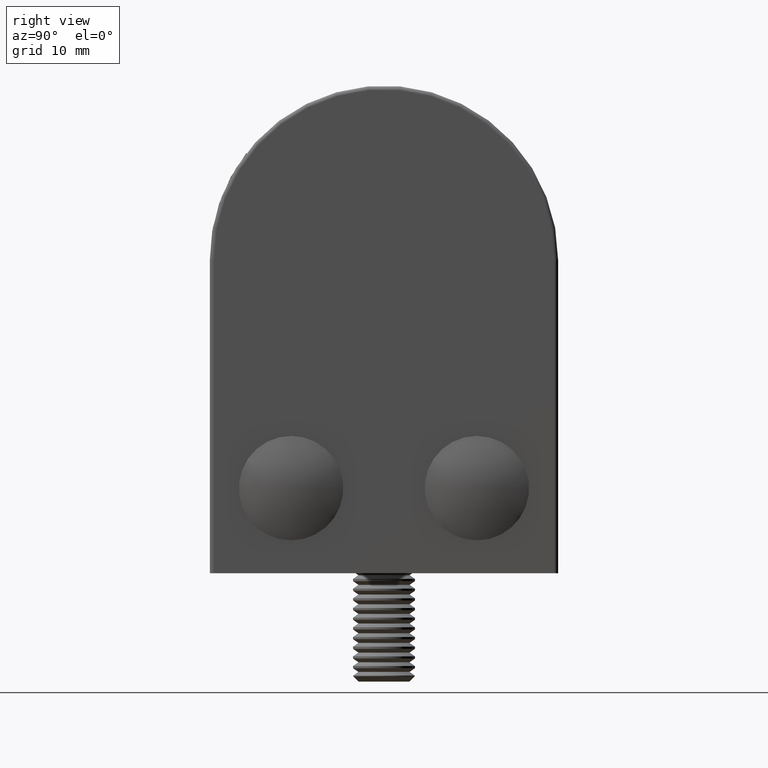
[diagram: clean part render]
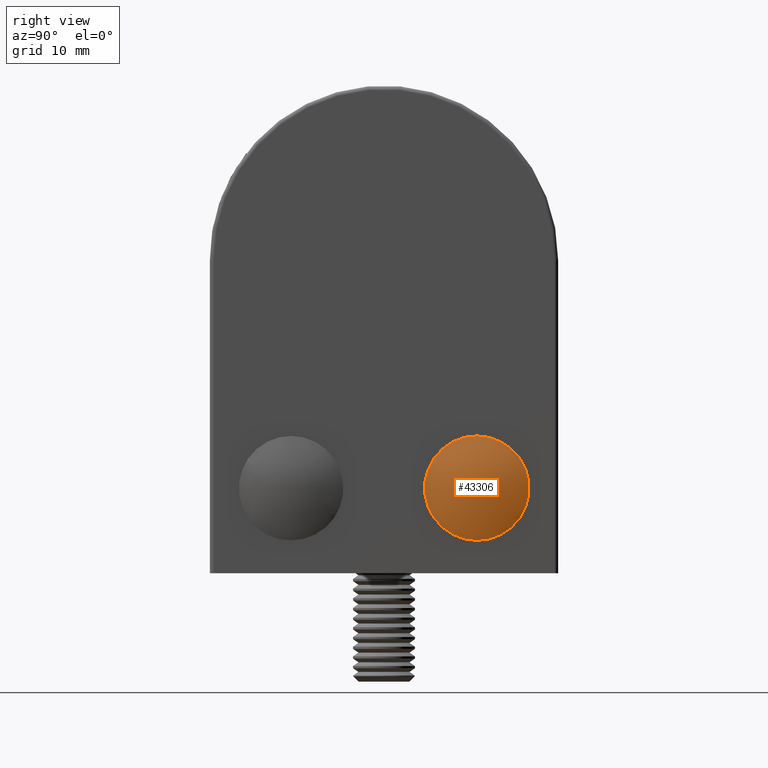
[diagram: same view with one face highlighted and labeled with its STEP entity id]
A machine part, right view. The second image highlights one B-rep face of the part: STEP entity #43306.
In plain terms, the highlighted spherical surface has radius 15.9375 mm.
Its self-contained STEP definition (entity closure, byte-faithful):
#8195 = EDGE_CURVE ( 'NONE', #60868, #60868, #20394, .T. ) ;
#19922 = DIRECTION ( 'NONE',  ( 0.000000000000000000, -1.000000000000000000, 0.000000000000000000 ) ) ;
#20394 = CIRCLE ( 'NONE', #54653, 6.750000000000052403 ) ;
#20460 = CARTESIAN_POINT ( 'NONE',  ( 0.000000000000000000, 3.469446951953614189E-15, -6.750000000000052403 ) ) ;
#38149 = ORIENTED_EDGE ( 'NONE', *, *, #8195, .F. ) ;
#40273 = CARTESIAN_POINT ( 'NONE',  ( 0.000000000000000000, 3.469446951953614189E-15, 0.000000000000000000 ) ) ;
#43306 = ADVANCED_FACE ( 'NONE', ( #89138 ), #80326, .T. ) ;
#47424 = DIRECTION ( 'NONE',  ( 0.000000000000000000, 0.000000000000000000, -1.000000000000000000 ) ) ;
#54653 = AXIS2_PLACEMENT_3D ( 'NONE', #40273, #19922, #47424 ) ;
#60868 = VERTEX_POINT ( 'NONE', #20460 ) ;
#66242 = CARTESIAN_POINT ( 'NONE',  ( 0.000000000000000000, -14.43750000000001954, 0.000000000000000000 ) ) ;
#66825 = EDGE_LOOP ( 'NONE', ( #38149 ) ) ;
#68059 = DIRECTION ( 'NONE',  ( 1.000000000000000000, 0.000000000000000000, 0.000000000000000000 ) ) ;
#73293 = DIRECTION ( 'NONE',  ( -0.000000000000000000, 0.000000000000000000, 1.000000000000000000 ) ) ;
#80326 = SPHERICAL_SURFACE ( 'NONE', #90553, 15.93750000000002132 ) ;
#89138 = FACE_OUTER_BOUND ( 'NONE', #66825, .T. ) ;
#90553 = AXIS2_PLACEMENT_3D ( 'NONE', #66242, #73293, #68059 ) ;